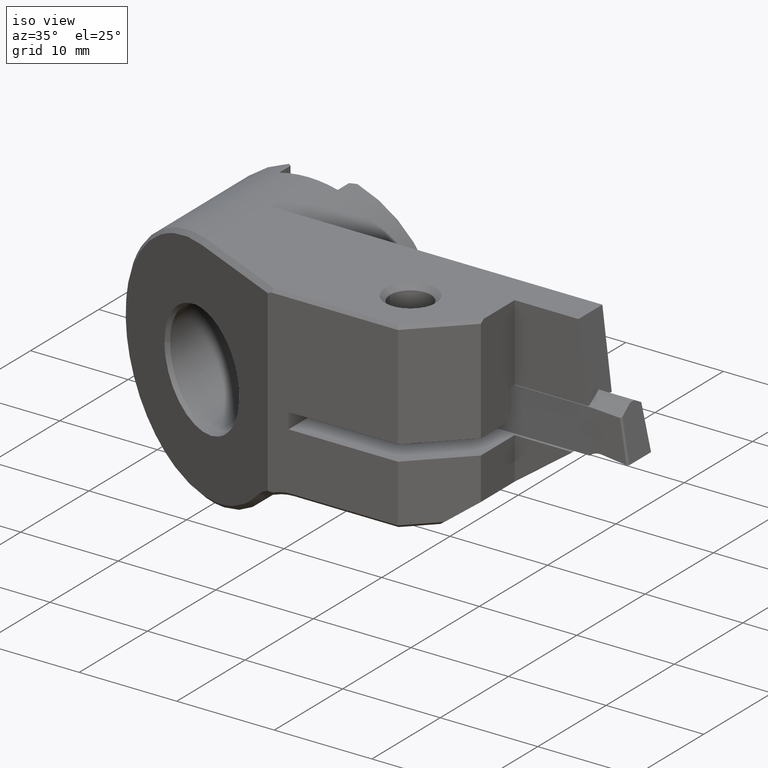
[diagram: clean part render]
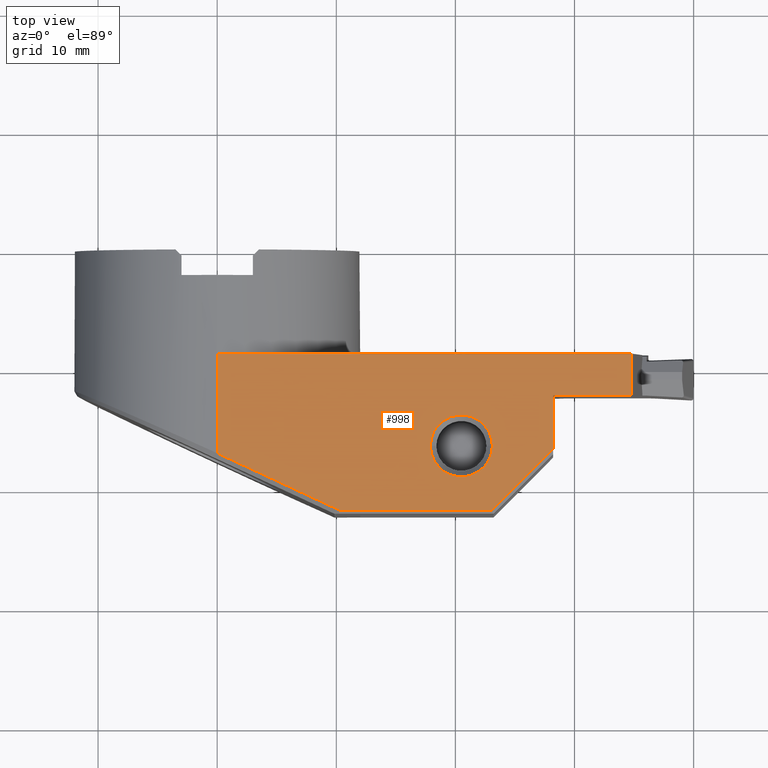
[diagram: tour spotlight — one face highlighted and labeled with its STEP entity id]
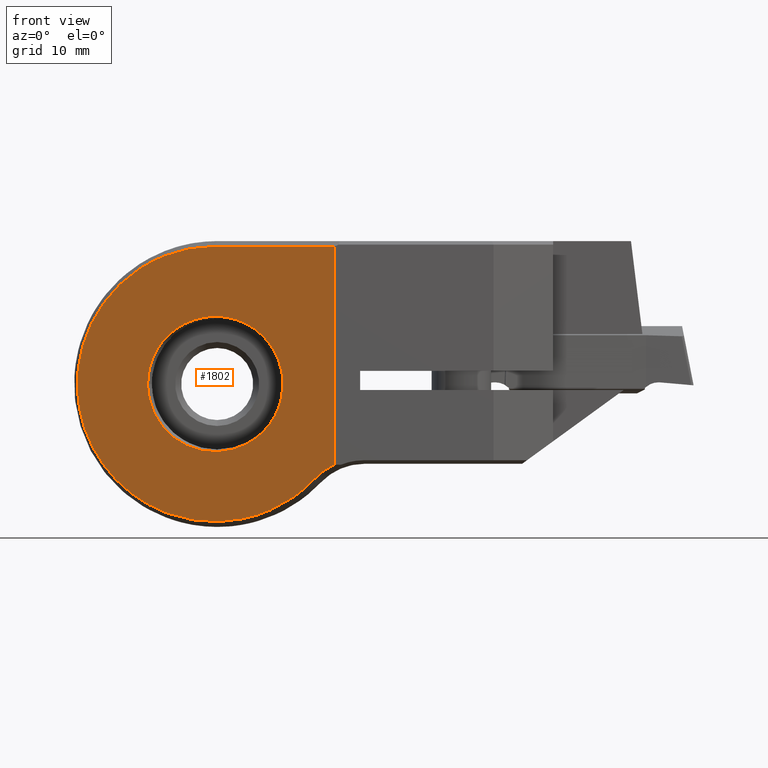
[diagram: tour spotlight — one face highlighted and labeled with its STEP entity id]
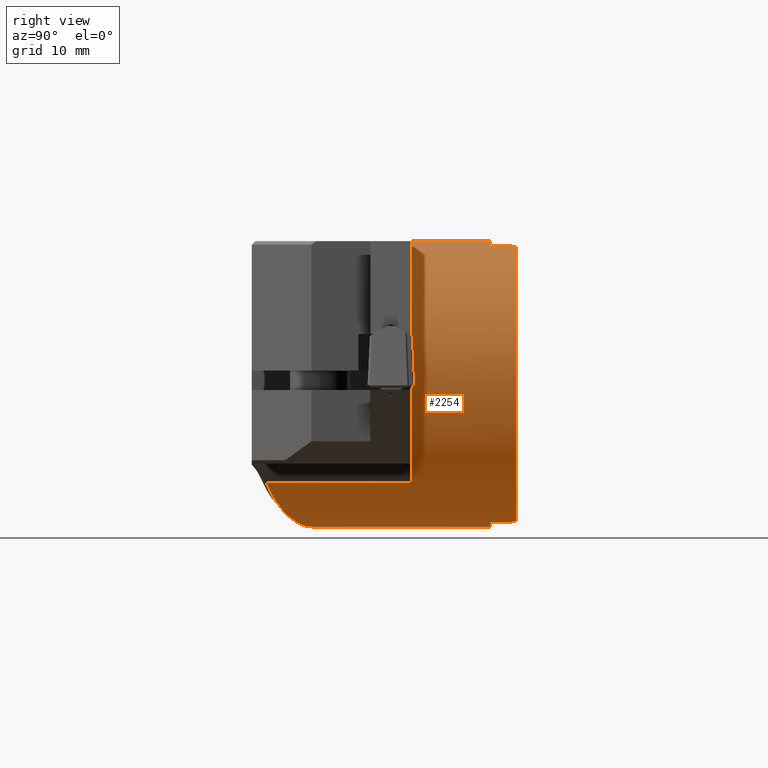
[diagram: tour spotlight — one face highlighted and labeled with its STEP entity id]
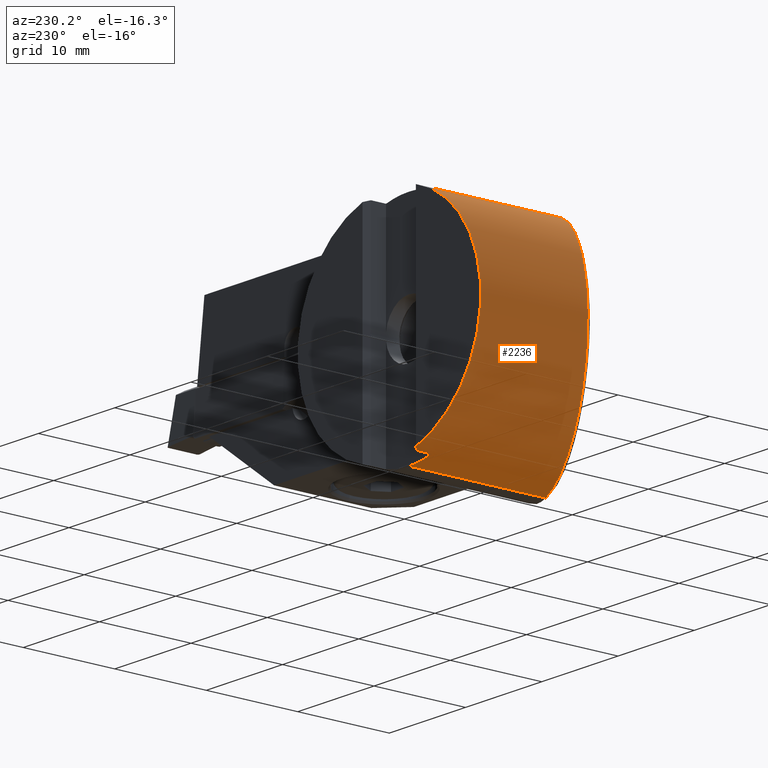
[diagram: tour spotlight — one face highlighted and labeled with its STEP entity id]
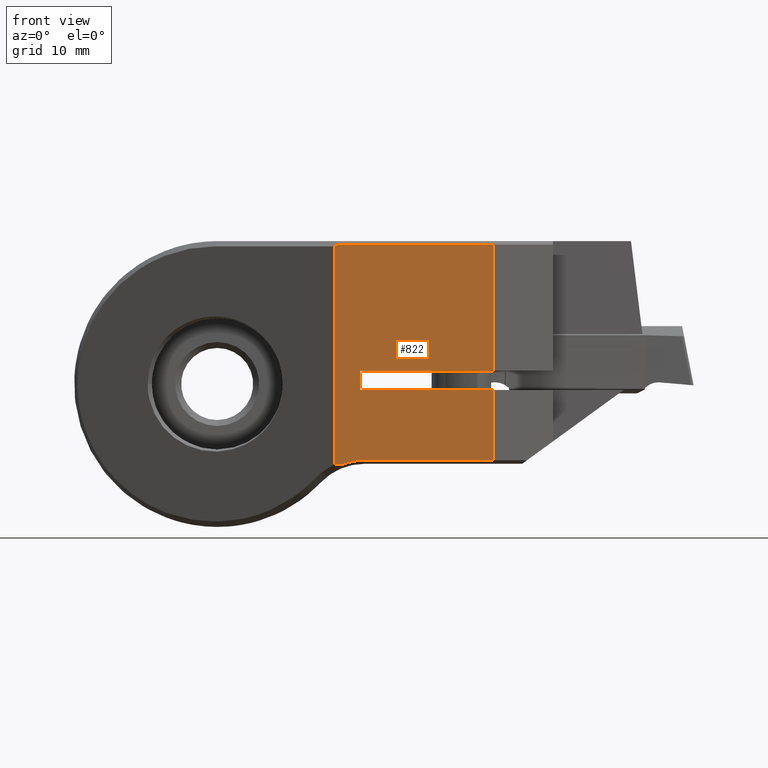
[diagram: tour spotlight — one face highlighted and labeled with its STEP entity id]
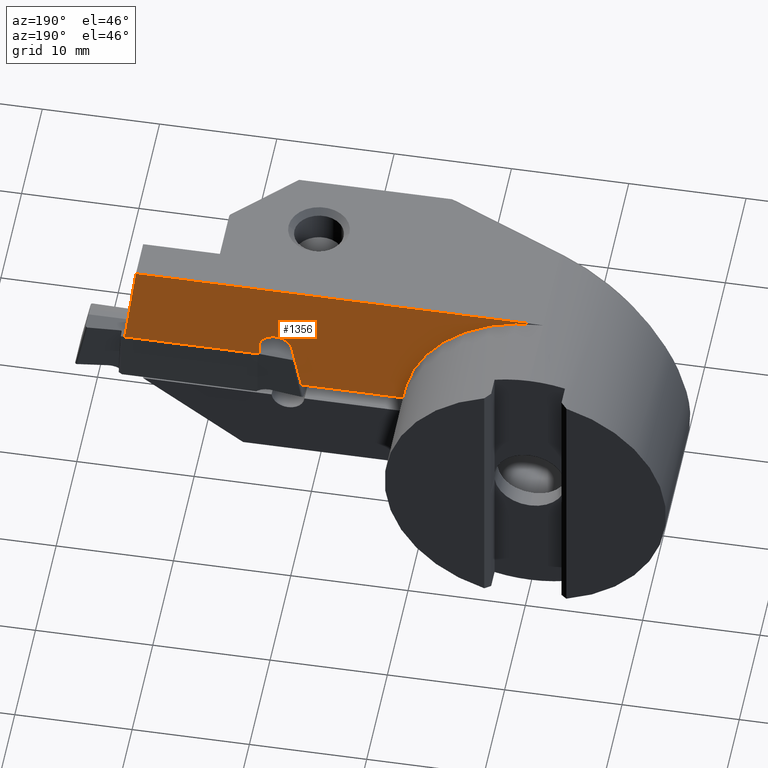
[diagram: tour spotlight — one face highlighted and labeled with its STEP entity id]
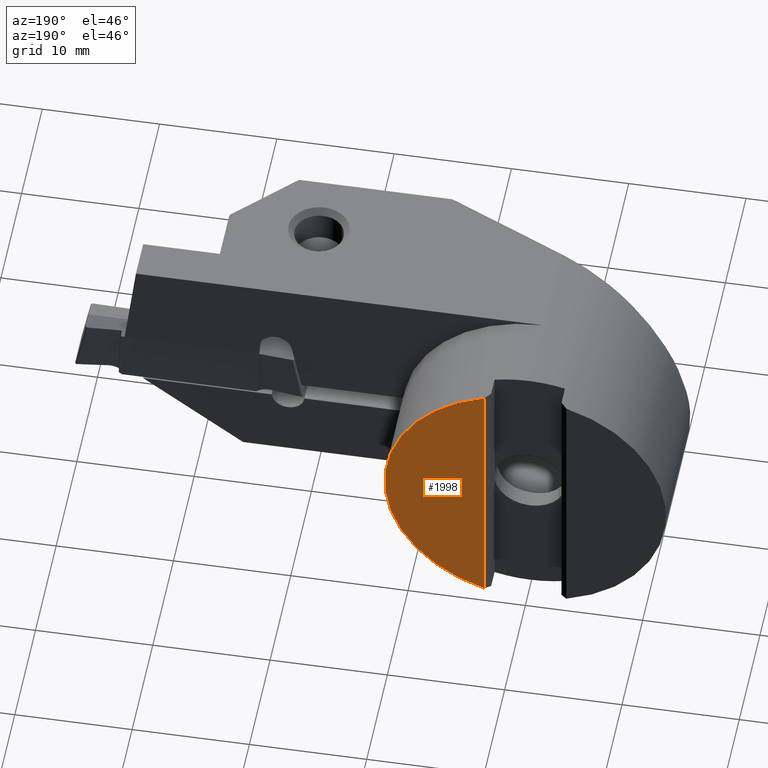
[diagram: tour spotlight — one face highlighted and labeled with its STEP entity id]
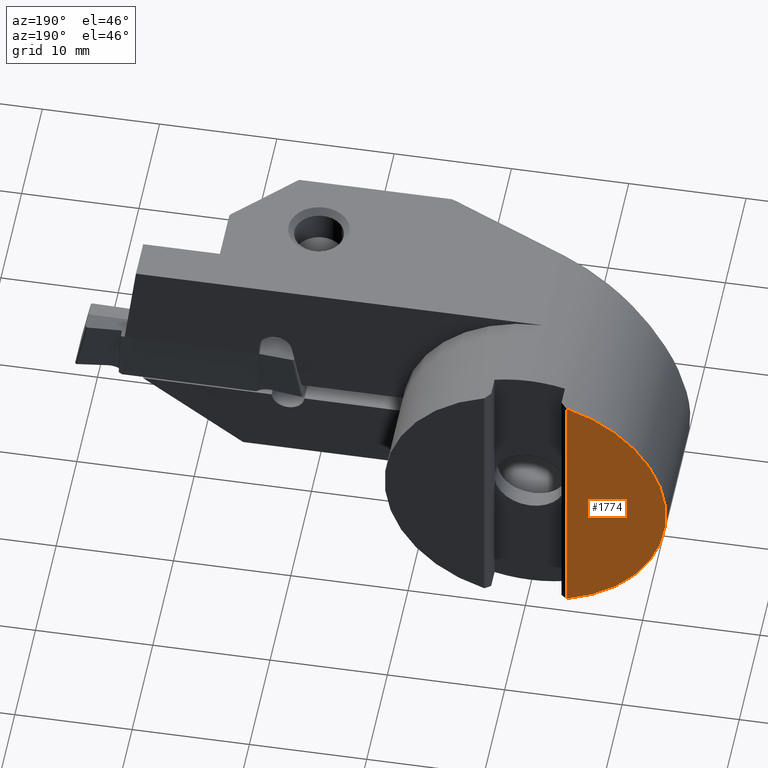
[diagram: tour spotlight — one face highlighted and labeled with its STEP entity id]
A machine part: a face-by-face anatomy tour. The part has 143 B-rep faces; the first image is the clean iso view, then the 8 largest visible faces are spotlighted one at a time (largest first), each with its STEP entity span.

Face 1 — top view, entity #998. In plain terms, the highlighted planar face has unit normal (0, 0, -1).
Definition (entity closure, byte-faithful):
#832=VERTEX_POINT('NONE',#2381);
#852=EDGE_CURVE('NONE',#2130,#2204,#2402,.F.);
#862=VERTEX_POINT('NONE',#2412);
#880=VERTEX_POINT('NONE',#2432);
#926=VERTEX_POINT('NONE',#2481);
#928=EDGE_CURVE('NONE',#880,#1282,#2483,.F.);
#998=ADVANCED_FACE('NONE',(#2559,#2560),#2561,.F.);
#1102=VERTEX_POINT('NONE',#2679);
#1282=VERTEX_POINT('NONE',#2873);
#1310=EDGE_CURVE('NONE',#1554,#926,#2902,.F.);
#1554=VERTEX_POINT('NONE',#3178);
#1572=EDGE_CURVE('NONE',#2130,#862,#3196,.T.);
#1678=EDGE_CURVE('NONE',#1554,#880,#3307,.T.);
#1836=EDGE_CURVE('NONE',#926,#862,#3480,.F.);
#1910=EDGE_CURVE('NONE',#832,#2322,#3562,.F.);
#1952=EDGE_CURVE('Kante7',#1282,#1102,#3610,.F.);
#1978=EDGE_CURVE('NONE',#2204,#1102,#3638,.F.);
#2130=VERTEX_POINT('NONE',#3809);
#2204=VERTEX_POINT('NONE',#3889);
#2222=EDGE_CURVE('NONE',#2322,#832,#3908,.T.);
#2322=VERTEX_POINT('NONE',#4021);
#2381=CARTESIAN_POINT('',(17.9,-16.5,12.0));
#2402=LINE('',#4183,#4184);
#2412=CARTESIAN_POINT('',(34.7416665021529,-8.75,12.0));
#2432=CARTESIAN_POINT('',(10.2690669821093,-21.903,12.0));
#2481=CARTESIAN_POINT('',(0.0,-8.75,12.0));
#2483=LINE('',#4321,#4322);
#2559=FACE_OUTER_BOUND('',#4485,.T.);
#2560=FACE_BOUND('',#4486,.T.);
#2561=PLANE('',#4487);
#2679=CARTESIAN_POINT('',(28.2,-16.775735931288,12.0));
#2873=CARTESIAN_POINT('',(23.0727359312881,-21.903,12.0));
#2902=LINE('',#5092,#5093);
#3178=CARTESIAN_POINT('',(0.0,-17.1144554241358,12.0));
#3196=LINE('',#5560,#5561);
#3307=LINE('',#5778,#5779);
#3480=LINE('',#6102,#6103);
#3562=CIRCLE('',#6209,2.60000000000002);
#3610=LINE('',#6352,#6353);
#3638=LINE('',#6401,#6402);
#3809=CARTESIAN_POINT('',(34.7416665021529,-12.25,12.0));
#3889=CARTESIAN_POINT('',(28.2,-12.25,12.0));
#3908=CIRCLE('',#6925,2.60000000000002);
#4021=CARTESIAN_POINT('',(23.1,-16.5,12.0));
#4183=CARTESIAN_POINT('',(14.1,-12.25,12.0));
#4184=VECTOR('',#7220,1.0);
#4321=CARTESIAN_POINT('',(17.85,-21.903,12.0));
#4322=VECTOR('',#7288,1.0);
#4485=EDGE_LOOP('',(#7356,#7357,#7358,#7359,#7360,#7361,#7362,#7363));
#4486=EDGE_LOOP('',(#7364,#7365));
#4487=AXIS2_PLACEMENT_3D('',#7366,#7367,#7368);
#5092=CARTESIAN_POINT('',(0.0,-11.17,12.0));
#5093=VECTOR('',#7744,1.0);
#5560=CARTESIAN_POINT('',(34.7416665021529,-11.1505000000001,12.0));
#5561=VECTOR('',#8059,1.0);
#5778=CARTESIAN_POINT('',(-6.55521673733335,-14.0577076586514,12.0));
#5779=VECTOR('',#8131,1.0);
#6102=CARTESIAN_POINT('',(-6.01853107621011E-033,-8.75,12.0));
#6103=VECTOR('',#8311,1.0);
#6209=AXIS2_PLACEMENT_3D('',#8397,#8398,#8399);
#6352=CARTESIAN_POINT('',(22.487867965644,-22.487867965644,12.0));
#6353=VECTOR('',#8460,1.0);
#6401=CARTESIAN_POINT('',(28.2,-11.625,12.0));
#6402=VECTOR('',#8494,1.0);
#6925=AXIS2_PLACEMENT_3D('',#8791,#8792,#8793);
#7220=DIRECTION('',(1.0,2.09002828430941E-016,0.0));
#7288=DIRECTION('',(-1.0,1.46390166749098E-016,-0.0));
#7356=ORIENTED_EDGE('',*,*,#852,.F.);
#7357=ORIENTED_EDGE('',*,*,#1572,.T.);
#7358=ORIENTED_EDGE('',*,*,#1836,.F.);
#7359=ORIENTED_EDGE('',*,*,#1310,.F.);
#7360=ORIENTED_EDGE('',*,*,#1678,.T.);
#7361=ORIENTED_EDGE('',*,*,#928,.T.);
#7362=ORIENTED_EDGE('',*,*,#1952,.T.);
#7363=ORIENTED_EDGE('',*,*,#1978,.F.);
#7364=ORIENTED_EDGE('',*,*,#1910,.T.);
#7365=ORIENTED_EDGE('',*,*,#2222,.T.);
#7366=CARTESIAN_POINT('',(-1.20370621524202E-032,0.0,12.0));
#7367=DIRECTION('',(0.0,0.0,-1.0));
#7368=DIRECTION('',(1.0,0.0,0.0));
#7744=DIRECTION('',(0.0,-1.0,0.0));
#8059=DIRECTION('',(0.0,1.0,0.0));
#8131=DIRECTION('',(0.906307787036649,-0.422618261740701,0.0));
#8311=DIRECTION('',(-1.0,0.0,0.0));
#8397=CARTESIAN_POINT('',(20.5,-16.5,12.0));
#8398=DIRECTION('',(0.0,0.0,1.0));
#8399=DIRECTION('',(-1.0,0.0,0.0));
#8460=DIRECTION('',(-0.707106781186548,-0.707106781186547,0.0));
#8494=DIRECTION('',(0.0,1.0,0.0));
#8791=CARTESIAN_POINT('',(20.5,-16.5,12.0));
#8792=DIRECTION('',(0.0,0.0,-1.0));
#8793=DIRECTION('',(-1.0,0.0,0.0));

Face 2 — front view, entity #1802. In plain terms, the highlighted planar face has unit normal (0.4226, 0.9063, -0).
Definition (entity closure, byte-faithful):
#856=VERTEX_POINT('NONE',#2406);
#930=EDGE_CURVE('Kante6',#1250,#1846,#2485,.T.);
#940=EDGE_CURVE('NONE',#1314,#1638,#2496,.F.);
#1250=VERTEX_POINT('NONE',#2840);
#1314=VERTEX_POINT('NONE',#2906);
#1638=VERTEX_POINT('NONE',#3265);
#1660=EDGE_CURVE('NONE',#1638,#856,#3288,.T.);
#1722=EDGE_CURVE('NONE',#856,#2284,#3354,.T.);
#1728=EDGE_CURVE('Kante6',#1846,#1250,#3361,.T.);
#1760=EDGE_CURVE('NONE',#2284,#1314,#3394,.T.);
#1802=ADVANCED_FACE('NONE',(#3441,#3442),#3443,.F.);
#1846=VERTEX_POINT('NONE',#3491);
#2284=VERTEX_POINT('NONE',#3980);
#2406=CARTESIAN_POINT('',(9.84728643384716,-22.2,11.5525744251075));
#2485=B_SPLINE_CURVE_WITH_KNOTS('',3,(#4325,#4326,#4327,#4328,#4329,#4330,#4331,#4332,#4333,#4334,#4335,#4336,#4337,#4338,#4339,#4340,#4341,#4342),.UNSPECIFIED.,.F.,.F.,(4,2,2,2,2,2,2,2,4),(0.0,0.0625000000000001,0.125,0.1875,0.25,0.3125,0.375,0.4375,0.5),.UNSPECIFIED.);
#2496=B_SPLINE_CURVE_WITH_KNOTS('',3,(#4372,#4373,#4374,#4375,#4376,#4377,#4378,#4379,#4380,#4381,#4382,#4383,#4384),.UNSPECIFIED.,.F.,.F.,(4,3,3,3,4),(-1.22535438666702,-1.20909306618072,-1.20330576480548,-0.759053796046614,-0.742063458954571),.UNSPECIFIED.);
#2840=CARTESIAN_POINT('',(-5.84099255856656,-14.8844353625653,0.0));
#2906=CARTESIAN_POINT('',(8.19215865515161,-21.4282012415692,-7.95088945727988));
#3265=CARTESIAN_POINT('',(9.84728643384715,-22.2,-6.76041176104631));
#3288=LINE('',#5737,#5738);
#3354=LINE('',#5848,#5849);
#3361=B_SPLINE_CURVE_WITH_KNOTS('',3,(#5859,#5860,#5861,#5862,#5863,#5864,#5865,#5866,#5867,#5868,#5869,#5870,#5871,#5872,#5873,#5874,#5875,#5876),.UNSPECIFIED.,.F.,.F.,(4,2,2,2,2,2,2,2,4),(0.5,0.5625,0.625,0.6875,0.75,0.8125,0.875,0.9375,1.0),.UNSPECIFIED.);
#3394=B_SPLINE_CURVE_WITH_KNOTS('',3,(#5953,#5954,#5955,#5956,#5957,#5958,#5959,#5960,#5961,#5962,#5963,#5964,#5965,#5966,#5967,#5968,#5969,#5970,#5971,#5972,#5973,#5974,#5975),.UNSPECIFIED.,.F.,.F.,(4,1,2,2,2,2,2,2,2,2,2,4),(0.0,0.0624999999999999,0.09375,0.125,0.25,0.375,0.5,0.625,0.75,0.8125,0.875,1.0),.UNSPECIFIED.);
#3441=FACE_OUTER_BOUND('',#6050,.T.);
#3442=FACE_BOUND('',#6051,.T.);
#3443=PLANE('',#6052);
#3491=CARTESIAN_POINT('',(5.52297767569965,-20.1835417098491,0.0));
#3980=CARTESIAN_POINT('',(-0.189090218719426,-17.5199607067802,11.5525744251075));
#4325=CARTESIAN_POINT('',(-5.84099255856656,-14.8844353625653,0.0));
#4326=CARTESIAN_POINT('',(-5.84075817972068,-14.884544655216,0.745087568224778));
#4327=CARTESIAN_POINT('',(-5.69496472944966,-14.9525292575862,1.46947116376939));
#4328=CARTESIAN_POINT('',(-5.11279924471768,-15.2239974814303,2.87552725813923));
#4329=CARTESIAN_POINT('',(-4.702950240012,-15.4151132110117,3.49143207143125));
#4330=CARTESIAN_POINT('',(-3.65060505670663,-15.9058298290096,4.54410834242046));
#4331=CARTESIAN_POINT('',(-3.03444841024459,-16.1931483918779,4.95358473667182));
#4332=CARTESIAN_POINT('',(-1.6285612622793,-16.8487243354758,5.5361643546286));
#4333=CARTESIAN_POINT('',(-0.903244383182274,-17.1869451507878,5.68186805950447));
#4334=CARTESIAN_POINT('',(0.585229500315354,-17.8810319216265,5.68210217476174));
#4335=CARTESIAN_POINT('',(1.31046027894953,-18.2192125876333,5.53595770532559));
#4336=CARTESIAN_POINT('',(2.71651962784052,-18.8748688298416,4.95379138597482));
#4337=CARTESIAN_POINT('',(3.33242421361982,-19.1620698548833,4.54394321389663));
#4338=CARTESIAN_POINT('',(4.38510131736499,-19.6529412499241,3.49159719995508));
#4339=CARTESIAN_POINT('',(4.79457729514537,-19.8438830341936,2.87544216483993));
#4340=CARTESIAN_POINT('',(5.37715691328813,-20.1155443716186,1.46955625706868));
#4341=CARTESIAN_POINT('',(5.52286061816335,-20.1834871250235,0.744238773035144));
#4342=CARTESIAN_POINT('',(5.52297767569965,-20.1835417098491,0.0));
#4372=CARTESIAN_POINT('',(10.2992142467117,-22.410737400072,-6.57321681012298));
#4373=CARTESIAN_POINT('',(10.271646144563,-22.3978821829193,-6.5838056651339));
#4374=CARTESIAN_POINT('',(10.2440780424142,-22.3850269657665,-6.59439452014482));
#4375=CARTESIAN_POINT('',(10.2165099402655,-22.3721717486137,-6.60498337515574));
#4376=CARTESIAN_POINT('',(10.2066986266263,-22.3675966579272,-6.60875188185349));
#4377=CARTESIAN_POINT('',(10.1968873129871,-22.3630215672407,-6.61252038855125));
#4378=CARTESIAN_POINT('',(10.1870845291898,-22.3584504540848,-6.61631122133081));
#4379=CARTESIAN_POINT('',(9.43392783620509,-22.0072477203553,-6.90557165610893));
#4380=CARTESIAN_POINT('',(8.7469734421148,-21.6869156255878,-7.36514444147254));
#4381=CARTESIAN_POINT('',(8.19215865515161,-21.4282012415692,-7.95088945727988));
#4382=CARTESIAN_POINT('',(8.17093986285117,-21.4183067562227,-7.97329117065069));
#4383=CARTESIAN_POINT('',(8.14972107055073,-21.4084122708762,-7.99569288402149));
#4384=CARTESIAN_POINT('',(8.1285022782503,-21.3985177855297,-8.01809459739229));
#5737=CARTESIAN_POINT('',(9.84728643384716,-22.2,14.75));
#5738=VECTOR('',#8115,1.0);
#5848=CARTESIAN_POINT('',(1.87316577697363,-18.4816064706479,11.5525744251075));
#5849=VECTOR('',#8169,1.0);
#5859=CARTESIAN_POINT('',(5.52297767569965,-20.1835417098491,0.0));
#5860=CARTESIAN_POINT('',(5.52309473323594,-20.1835962946747,-0.744238773035144));
#5861=CARTESIAN_POINT('',(5.37694984658675,-20.11544781483,-1.46947116376647));
#5862=CARTESIAN_POINT('',(4.79478436184676,-19.8439795909822,-2.87552725814214));
#5863=CARTESIAN_POINT('',(4.38493535714486,-19.6528638614025,-3.49143207143038));
#5864=CARTESIAN_POINT('',(3.33259017383994,-19.1621472434049,-4.54410834242133));
#5865=CARTESIAN_POINT('',(2.71643352738182,-18.8748286805384,-4.95358473667106));
#5866=CARTESIAN_POINT('',(1.31054637940823,-18.2192527369366,-5.53616435462935));
#5867=CARTESIAN_POINT('',(0.585229500316712,-17.8810319216271,-5.68186805950522));
#5868=CARTESIAN_POINT('',(-0.903244383183642,-17.1869451507872,-5.68210217476098));
#5869=CARTESIAN_POINT('',(-1.62847516181423,-16.848764484782,-5.53595770532632));
#5870=CARTESIAN_POINT('',(-3.03453451070965,-16.1931082425717,-4.95379138597411));
#5871=CARTESIAN_POINT('',(-3.65043909648735,-15.9059072175308,-4.54394321389751));
#5872=CARTESIAN_POINT('',(-4.70311620023126,-15.4150358224905,-3.49159719995423));
#5873=CARTESIAN_POINT('',(-5.1122407322807,-15.2242579200568,-2.87629027655649));
#5874=CARTESIAN_POINT('',(-5.69552324188661,-14.9522688189597,-1.46870814535214));
#5875=CARTESIAN_POINT('',(-5.84122676571425,-14.8843261499787,-0.7445417417007));
#5876=CARTESIAN_POINT('',(-5.84099255856656,-14.8844353625653,0.0));
#5953=CARTESIAN_POINT('',(-0.189090218719426,-17.5199607067802,11.5525744251075));
#5954=CARTESIAN_POINT('',(-1.15865268069903,-17.0678463056995,11.5534416155385));
#5955=CARTESIAN_POINT('',(-2.57074544813285,-16.4093766342198,11.3813292568176));
#5956=CARTESIAN_POINT('',(-3.91946182726329,-15.7804598579522,10.9490971815457));
#5957=CARTESIAN_POINT('',(-4.80452243817172,-15.3677493171542,10.6031380832421));
#5958=CARTESIAN_POINT('',(-5.24100875176121,-15.1642124064476,10.4007188600964));
#5959=CARTESIAN_POINT('',(-7.37825292451694,-14.1675990813444,9.24948662338826));
#5960=CARTESIAN_POINT('',(-8.76834710187147,-13.5193875208873,7.97661913822175));
#5961=CARTESIAN_POINT('',(-10.9051878083637,-12.5229623351927,4.73310938601232));
#5962=CARTESIAN_POINT('',(-11.5252580063536,-12.2338188532763,2.95320189548876));
#5963=CARTESIAN_POINT('',(-11.868064537307,-12.0739655426272,-0.915767915942976));
#5964=CARTESIAN_POINT('',(-11.5697448683749,-12.2130742888285,-2.77683296048296));
#5965=CARTESIAN_POINT('',(-10.0364933251883,-12.9280412252944,-6.3455278794115));
#5966=CARTESIAN_POINT('',(-8.89116324103931,-13.4621174146484,-7.84245029683228));
#5967=CARTESIAN_POINT('',(-5.84871731433301,-14.880833249794,-10.2569826532118));
#5968=CARTESIAN_POINT('',(-4.13042188142674,-15.682087569131,-11.0315912844495));
#5969=CARTESIAN_POINT('',(-1.26267003637321,-17.0193422161675,-11.5435716990839));
#5970=CARTESIAN_POINT('',(-0.314965215228681,-17.4612642319377,-11.5957333764048));
#5971=CARTESIAN_POINT('',(1.56401950598044,-18.3374491969937,-11.4630598092659));
#5972=CARTESIAN_POINT('',(2.49397926830137,-18.77109655594,-11.2786583817257));
#5973=CARTESIAN_POINT('',(5.26714200010612,-20.0642435750906,-10.3673558149151));
#5974=CARTESIAN_POINT('',(6.85840593663346,-20.8062621348391,-9.35935534752324));
#5975=CARTESIAN_POINT('',(8.19215865515161,-21.4282012415692,-7.95088945727988));
#6050=EDGE_LOOP('',(#8267,#8268,#8269,#8270));
#6051=EDGE_LOOP('',(#8271,#8272));
#6052=AXIS2_PLACEMENT_3D('',#8273,#8274,#8275);
#8115=DIRECTION('',(4.59569568417966E-032,-2.14300809208286E-032,1.0));
#8169=DIRECTION('',(-0.906307787036649,0.422618261740701,-7.85046229341892E-017));
#8267=ORIENTED_EDGE('',*,*,#1760,.T.);
#8268=ORIENTED_EDGE('',*,*,#940,.T.);
#8269=ORIENTED_EDGE('',*,*,#1660,.T.);
#8270=ORIENTED_EDGE('',*,*,#1722,.T.);
#8271=ORIENTED_EDGE('',*,*,#930,.T.);
#8272=ORIENTED_EDGE('',*,*,#1728,.T.);
#8273=CARTESIAN_POINT('',(10.49063851,-22.5,17.5));
#8274=DIRECTION('',(0.422618261740701,0.906307787036649,-0.0));
#8275=DIRECTION('',(0.0,0.0,1.0));

Face 3 — right view, entity #2254. In plain terms, the highlighted cylindrical surface (partial cylindrical patch) has radius 12 mm, axis along (-0, 1, -0).
Definition (entity closure, byte-faithful):
#806=EDGE_CURVE('NONE',#1348,#1602,#2352,.F.);
#922=VERTEX_POINT('NONE',#2477);
#926=VERTEX_POINT('NONE',#2481);
#1106=EDGE_CURVE('NONE',#1670,#1388,#2683,.F.);
#1160=EDGE_CURVE('NONE',#1548,#1518,#2742,.F.);
#1190=VERTEX_POINT('NONE',#2775);
#1264=EDGE_CURVE('NONE',#1518,#2260,#2855,.F.);
#1348=VERTEX_POINT('NONE',#2946);
#1380=VERTEX_POINT('NONE',#2982);
#1388=VERTEX_POINT('NONE',#2990);
#1518=VERTEX_POINT('NONE',#3138);
#1548=VERTEX_POINT('NONE',#3171);
#1602=VERTEX_POINT('NONE',#3228);
#1648=EDGE_CURVE('NONE',#926,#1388,#3275,.T.);
#1670=VERTEX_POINT('NONE',#3299);
#1696=EDGE_CURVE('NONE',#2036,#1348,#3326,.T.);
#1730=EDGE_CURVE('NONE',#1602,#1548,#3363,.F.);
#1754=EDGE_CURVE('NONE',#1190,#2036,#3388,.T.);
#1762=EDGE_CURVE('NONE',#1380,#2260,#3396,.T.);
#1808=VERTEX_POINT('NONE',#3449);
#1974=EDGE_CURVE('NONE',#1808,#922,#3634,.F.);
#2036=VERTEX_POINT('NONE',#3703);
#2102=EDGE_CURVE('NONE',#1670,#1380,#3780,.T.);
#2120=EDGE_CURVE('NONE',#1808,#1190,#3798,.T.);
#2246=EDGE_CURVE('NONE',#922,#926,#3935,.F.);
#2254=ADVANCED_FACE('Fl�che4',(#3946),#3947,.T.);
#2260=VERTEX_POINT('NONE',#3953);
#2352=CIRCLE('',#4046,12.0);
#2477=CARTESIAN_POINT('',(12.0,-8.75,0.0));
#2481=CARTESIAN_POINT('',(0.0,-8.75,12.0));
#2683=CIRCLE('',#4683,12.0);
#2742=ELLIPSE('',#4863,16.970562748477,12.0);
#2775=CARTESIAN_POINT('',(8.70585055638072,-21.0226959589248,-8.25882352941177));
#2855=CIRCLE('',#5023,12.0);
#2946=CARTESIAN_POINT('',(1.46957615897682E-015,-2.15,-12.0));
#2982=CARTESIAN_POINT('',(3.0,-0.5,11.6189500386223));
#2990=CARTESIAN_POINT('',(0.0,-2.15,12.0));
#3138=CARTESIAN_POINT('',(3.50000000000001,0.0,-11.478240283249));
#3171=CARTESIAN_POINT('',(3.0,-0.5,-11.6189500386223));
#3228=CARTESIAN_POINT('',(3.0,-2.15,-11.6189500386223));
#3275=LINE('',#5718,#5719);
#3299=CARTESIAN_POINT('',(3.0,-2.15,11.6189500386223));
#3326=B_SPLINE_CURVE_WITH_KNOTS('',3,(#5807,#5808,#5809,#5810),.UNSPECIFIED.,.F.,.F.,(4,4),(-0.0059448540818176,0.00902),.UNSPECIFIED.);
#3363=LINE('',#5879,#5880);
#3388=B_SPLINE_CURVE_WITH_KNOTS('',3,(#5917,#5918,#5919,#5920,#5921,#5922,#5923,#5924,#5925,#5926,#5927,#5928,#5929,#5930,#5931,#5932,#5933,#5934,#5935,#5936,#5937,#5938,#5939,#5940,#5941,#5942),.UNSPECIFIED.,.F.,.F.,(4,2,2,2,2,2,2,2,2,2,2,2,4),(-12.2684422680615,-12.1450642113202,-11.9696358276408,-11.8871228371023,-11.7908012352102,-11.5960268058757,-11.2848208732924,-10.5858842707867,-9.06837693916272,-8.06810803531795,-5.38891703570082,-2.6467959772772,-0.0),.UNSPECIFIED.);
#3396=ELLIPSE('',#5978,16.970562748477,12.0);
#3449=CARTESIAN_POINT('',(8.70585055638072,-8.75,-8.25882352941177));
#3634=CIRCLE('',#6394,12.0);
#3703=CARTESIAN_POINT('',(0.000127132625230869,-17.1148540818176,-11.9999999993266));
#3780=LINE('',#6662,#6663);
#3798=LINE('',#6698,#6699);
#3935=CIRCLE('',#6963,12.0);
#3946=FACE_OUTER_BOUND('',#6974,.T.);
#3947=CYLINDRICAL_SURFACE('',#6975,12.0);
#3953=CARTESIAN_POINT('',(3.50000000000001,0.0,11.478240283249));
#4046=AXIS2_PLACEMENT_3D('',#7156,#7157,#7158);
#4683=AXIS2_PLACEMENT_3D('',#7515,#7516,#7517);
#4863=AXIS2_PLACEMENT_3D('',#7581,#7582,#7583);
#5023=AXIS2_PLACEMENT_3D('',#7709,#7710,#7711);
#5718=CARTESIAN_POINT('',(0.0,-11.17,12.0));
#5719=VECTOR('',#8104,1000.0);
#5807=CARTESIAN_POINT('',(0.000127132625236983,-17.1148540818176,-11.9999999993266));
#5808=CARTESIAN_POINT('',(8.47550834969497E-005,-12.1265693878784,-11.9999999997755));
#5809=CARTESIAN_POINT('',(4.23775417438805E-005,-7.13828469393921,-12.0));
#5810=CARTESIAN_POINT('',(1.46952762458685E-015,-2.15,-12.0));
#5879=CARTESIAN_POINT('',(3.0,-11.17,-11.6189500386223));
#5880=VECTOR('',#8181,1.0);
#5917=CARTESIAN_POINT('',(9.02414568741277,-21.1752416038013,-7.90979105996799));
#5918=CARTESIAN_POINT('',(8.99522420958436,-21.1604063527997,-7.94278708065174));
#5919=CARTESIAN_POINT('',(8.96608498487648,-21.1457392451219,-7.97566643625527));
#5920=CARTESIAN_POINT('',(8.89498573531549,-21.1106249375413,-8.05500719681153));
#5921=CARTESIAN_POINT('',(8.85280626244477,-21.0903512602458,-8.10134317150246));
#5922=CARTESIAN_POINT('',(8.79014442520631,-21.061044869521,-8.16910231362982));
#5923=CARTESIAN_POINT('',(8.77000334923653,-21.051746013319,-8.19072131788261));
#5924=CARTESIAN_POINT('',(8.7261421946221,-21.0317568349965,-8.23745312720663));
#5925=CARTESIAN_POINT('',(8.70618485368654,-21.022846674365,-8.25852795334378));
#5926=CARTESIAN_POINT('',(8.64229185312028,-20.9942627408545,-8.32554080596899));
#5927=CARTESIAN_POINT('',(8.59922663335412,-20.9749820306862,-8.37001360331007));
#5928=CARTESIAN_POINT('',(8.48655232987617,-20.9245042744274,-8.48458590350995));
#5929=CARTESIAN_POINT('',(8.41646623241893,-20.8930743355085,-8.55411114808566));
#5930=CARTESIAN_POINT('',(8.18650227085089,-20.7898704372714,-8.7766859191353));
#5931=CARTESIAN_POINT('',(8.02355886019871,-20.7166268979833,-8.92586300542581));
#5932=CARTESIAN_POINT('',(7.49554878525037,-20.4791477178541,-9.38325655829938));
#5933=CARTESIAN_POINT('',(7.11740203903634,-20.3089008445304,-9.67299060520621));
#5934=CARTESIAN_POINT('',(6.46682791415422,-20.0164250578397,-10.1132353788373));
#5935=CARTESIAN_POINT('',(6.20238234524796,-19.8976368690828,-10.2774853559515));
#5936=CARTESIAN_POINT('',(5.21038298804307,-19.4524471678354,-10.841699162929));
#5937=CARTESIAN_POINT('',(4.45198512185068,-19.1131160695928,-11.1737860403407));
#5938=CARTESIAN_POINT('',(2.87076603987302,-18.4031235970118,-11.6817972401206));
#5939=CARTESIAN_POINT('',(2.04879754563794,-18.0332547987479,-11.8532256793247));
#5940=CARTESIAN_POINT('',(0.417120361225588,-17.301365217998,-12.0197735168981));
#5941=CARTESIAN_POINT('',(-0.390660457920264,-16.9401001495536,-12.0206767994961));
#5942=CARTESIAN_POINT('',(-1.19245521778436,-16.5807872027933,-11.9406051167258));
#5978=AXIS2_PLACEMENT_3D('',#8200,#8201,#8202);
#6394=AXIS2_PLACEMENT_3D('',#8490,#8491,#8492);
#6662=CARTESIAN_POINT('',(3.0,-11.17,11.6189500386223));
#6663=VECTOR('',#8689,1.0);
#6698=CARTESIAN_POINT('',(8.70585055638073,-11.17,-8.25882352941177));
#6699=VECTOR('',#8695,1.0);
#6963=AXIS2_PLACEMENT_3D('',#8835,#8836,#8837);
#6974=EDGE_LOOP('',(#8859,#8860,#8861,#8862,#8863,#8864,#8865,#8866,#8867,#8868,#8869,#8870,#8871));
#6975=AXIS2_PLACEMENT_3D('',#8872,#8873,#8874);
#7156=CARTESIAN_POINT('',(0.0,-2.15,0.0));
#7157=DIRECTION('',(0.0,1.0,0.0));
#7158=DIRECTION('',(0.0,0.0,1.0));
#7515=CARTESIAN_POINT('',(0.0,-2.15,0.0));
#7516=DIRECTION('',(0.0,1.0,0.0));
#7517=DIRECTION('',(0.0,0.0,1.0));
#7581=CARTESIAN_POINT('',(0.0,-3.49999999999997,0.0));
#7582=DIRECTION('',(-0.707106781186544,0.707106781186551,0.0));
#7583=DIRECTION('',(-0.707106781186552,-0.707106781186544,0.0));
#7709=CARTESIAN_POINT('',(0.0,0.0,0.0));
#7710=DIRECTION('',(-0.0,1.0,0.0));
#7711=DIRECTION('',(0.0,0.0,1.0));
#8104=DIRECTION('',(-0.0,1.0,0.0));
#8181=DIRECTION('',(0.0,-1.0,0.0));
#8200=CARTESIAN_POINT('',(0.0,-3.49999999999997,0.0));
#8201=DIRECTION('',(-0.707106781186544,0.707106781186551,0.0));
#8202=DIRECTION('',(-0.707106781186552,-0.707106781186544,0.0));
#8490=CARTESIAN_POINT('',(0.0,-8.75,0.0));
#8491=DIRECTION('',(0.0,1.0,0.0));
#8492=DIRECTION('',(0.0,0.0,1.0));
#8689=DIRECTION('',(-0.0,1.0,0.0));
#8695=DIRECTION('',(0.0,-1.0,0.0));
#8835=CARTESIAN_POINT('',(0.0,-8.75,0.0));
#8836=DIRECTION('',(0.0,1.0,0.0));
#8837=DIRECTION('',(0.0,0.0,1.0));
#8859=ORIENTED_EDGE('',*,*,#1754,.T.);
#8860=ORIENTED_EDGE('',*,*,#1696,.T.);
#8861=ORIENTED_EDGE('',*,*,#806,.T.);
#8862=ORIENTED_EDGE('',*,*,#1730,.T.);
#8863=ORIENTED_EDGE('',*,*,#1160,.T.);
#8864=ORIENTED_EDGE('',*,*,#1264,.T.);
#8865=ORIENTED_EDGE('',*,*,#1762,.F.);
#8866=ORIENTED_EDGE('',*,*,#2102,.F.);
#8867=ORIENTED_EDGE('',*,*,#1106,.T.);
#8868=ORIENTED_EDGE('',*,*,#1648,.F.);
#8869=ORIENTED_EDGE('',*,*,#2246,.F.);
#8870=ORIENTED_EDGE('',*,*,#1974,.F.);
#8871=ORIENTED_EDGE('',*,*,#2120,.T.);
#8872=CARTESIAN_POINT('',(0.0,-11.17,0.0));
#8873=DIRECTION('',(-0.0,1.0,-0.0));
#8874=DIRECTION('',(0.0,0.0,1.0));

Face 4 — auxiliary view, entity #2236. In plain terms, the highlighted cylindrical surface (partial cylindrical patch) has radius 12 mm, axis along (-0, 1, -0).
Definition (entity closure, byte-faithful):
#838=EDGE_CURVE('NONE',#1914,#1554,#2387,.T.);
#926=VERTEX_POINT('NONE',#2481);
#1218=VERTEX_POINT('NONE',#2806);
#1246=EDGE_CURVE('NONE',#1218,#1536,#2836,.F.);
#1272=VERTEX_POINT('NONE',#2863);
#1310=EDGE_CURVE('NONE',#1554,#926,#2902,.F.);
#1328=VERTEX_POINT('NONE',#2924);
#1348=VERTEX_POINT('NONE',#2946);
#1388=VERTEX_POINT('NONE',#2990);
#1480=EDGE_CURVE('',#1348,#1914,#3095,.T.);
#1488=EDGE_CURVE('NONE',#1970,#1328,#3105,.F.);
#1536=VERTEX_POINT('NONE',#3156);
#1554=VERTEX_POINT('NONE',#3178);
#1612=VERTEX_POINT('NONE',#3238);
#1648=EDGE_CURVE('NONE',#926,#1388,#3275,.T.);
#1814=EDGE_CURVE('NONE',#1272,#1218,#3455,.T.);
#1914=VERTEX_POINT('',#3567);
#1970=VERTEX_POINT('NONE',#3629);
#1994=EDGE_CURVE('NONE',#1612,#1348,#3654,.F.);
#2086=EDGE_CURVE('NONE',#1388,#1970,#3762,.F.);
#2116=EDGE_CURVE('NONE',#1328,#1272,#3794,.F.);
#2212=EDGE_CURVE('NONE',#1536,#1612,#3897,.F.);
#2236=ADVANCED_FACE('Fl�che4',(#3924),#3925,.T.);
#2387=B_SPLINE_CURVE_WITH_KNOTS('',3,(#4120,#4121,#4122,#4123,#4124,#4125,#4126,#4127,#4128,#4129,#4130,#4131,#4132,#4133,#4134,#4135,#4136,#4137,#4138,#4139,#4140,#4141,#4142,#4143,#4144,#4145,#4146,#4147,#4148,#4149,#4150,#4151,#4152,#4153,#4154,#4155,#4156,#4157,#4158,#4159),.UNSPECIFIED.,.F.,.F.,(4,2,2,2,2,2,2,2,2,2,2,2,2,2,2,2,2,2,2,4),(-51.1107395327613,-46.6343419368662,-42.4507812472294,-38.263184287832,-32.279166348962,-30.0434360503467,-24.5468840983179,-22.4867814567998,-18.7622350558625,-15.9694199907063,-10.3311747622469,-8.94288867909548,-2.8554343392998,-0.548687361915619,-0.490720992001181,-0.428060672749908,-0.325750287488978,-0.25136645756349,-0.139472428338021,-0.0),.UNSPECIFIED.);
#2481=CARTESIAN_POINT('',(0.0,-8.75,12.0));
#2806=CARTESIAN_POINT('',(-3.50000000000001,0.0,-11.478240283249));
#2836=ELLIPSE('',#4994,16.9705627484771,12.0);
#2863=CARTESIAN_POINT('',(-3.5,-4.44089209850063E-016,11.478240283249));
#2902=LINE('',#5092,#5093);
#2924=CARTESIAN_POINT('',(-3.0,-0.499999999999999,11.6189500386223));
#2946=CARTESIAN_POINT('',(1.46957615897682E-015,-2.15,-12.0));
#2990=CARTESIAN_POINT('',(0.0,-2.15,12.0));
#3095=LINE('',#5356,#5357);
#3105=LINE('',#5370,#5371);
#3156=CARTESIAN_POINT('',(-3.0,-0.499999999999999,-11.6189500386223));
#3178=CARTESIAN_POINT('',(0.0,-17.1144554241358,12.0));
#3238=CARTESIAN_POINT('',(-3.0,-2.15,-11.6189500386223));
#3275=LINE('',#5718,#5719);
#3455=CIRCLE('',#6069,12.0);
#3567=CARTESIAN_POINT('',(-2.78318275323868E-013,-17.1147971543016,-12.0));
#3629=CARTESIAN_POINT('',(-3.0,-2.15,11.6189500386223));
#3654=CIRCLE('',#6425,12.0);
#3762=CIRCLE('',#6607,12.0);
#3794=ELLIPSE('',#6691,16.9705627484771,12.0);
#3897=LINE('',#6901,#6902);
#3924=FACE_OUTER_BOUND('',#6945,.T.);
#3925=CYLINDRICAL_SURFACE('',#6946,12.0);
#4120=CARTESIAN_POINT('',(1.67317886542639,-17.8648540818176,-11.8827805030763));
#4121=CARTESIAN_POINT('',(0.60791521709089,-17.3866432334027,-12.0327770987418));
#4122=CARTESIAN_POINT('',(-0.472663882641415,-16.9037669192122,-12.03887021179));
#4123=CARTESIAN_POINT('',(-2.5370940932108,-15.9776749332199,-11.771764214386));
#4124=CARTESIAN_POINT('',(-3.5196883202289,-15.5336469013866,-11.5171405152281));
#4125=CARTESIAN_POINT('',(-5.40726804069047,-14.6847557078922,-10.7608632349182));
#4126=CARTESIAN_POINT('',(-6.30827346872618,-14.2818293955087,-10.2606549354934));
#4127=CARTESIAN_POINT('',(-8.33247774144306,-13.3745462164915,-8.76160309023047));
#4128=CARTESIAN_POINT('',(-9.37198452895437,-12.9043929519191,-7.65002585506647));
#4129=CARTESIAN_POINT('',(-10.4874064357695,-12.4055164180473,-5.86031718227874));
#4130=CARTESIAN_POINT('',(-10.7571062443139,-12.2852696908241,-5.3498718678732));
#4131=CARTESIAN_POINT('',(-11.5626708495358,-11.9239336929206,-3.51259323059222));
#4132=CARTESIAN_POINT('',(-11.9023215892027,-11.7685540900949,-2.10636342081118));
#4133=CARTESIAN_POINT('',(-12.0117356565118,-11.7212966543418,-0.116134718561009));
#4134=CARTESIAN_POINT('',(-12.0046766299932,-11.725212648334,0.427521612539464));
#4135=CARTESIAN_POINT('',(-11.8815272753057,-11.7807286759043,1.94773702907781));
#4136=CARTESIAN_POINT('',(-11.6830733050267,-11.8678076682886,2.90760589723396));
#4137=CARTESIAN_POINT('',(-11.1391184659755,-12.1118076393341,4.52252949042691));
#4138=CARTESIAN_POINT('',(-10.845107154128,-12.2446283085182,5.18681136631241));
#4139=CARTESIAN_POINT('',(-9.79046987814872,-12.7201698232361,7.08967327614993));
#4140=CARTESIAN_POINT('',(-8.82144983387422,-13.151606914507,8.292207594673));
#4141=CARTESIAN_POINT('',(-7.26949305856204,-13.8495061711559,9.55566899606728));
#4142=CARTESIAN_POINT('',(-6.95205037667618,-13.9924387505807,9.78890685485003));
#4143=CARTESIAN_POINT('',(-5.19183390659383,-14.7847584958933,10.9544556959212));
#4144=CARTESIAN_POINT('',(-3.58841057142052,-15.5016793502419,11.574004337243));
#4145=CARTESIAN_POINT('',(-1.29705423676789,-16.5321919076733,11.9467412586936));
#4146=CARTESIAN_POINT('',(-0.660697915006315,-16.818576673568,11.9987157233126));
#4147=CARTESIAN_POINT('',(-0.0077469115488665,-17.1109868333584,12.0000081738703));
#4148=CARTESIAN_POINT('',(0.00900119487446541,-17.1184753945949,12.0000095585553));
#4149=CARTESIAN_POINT('',(0.0456657085058819,-17.1349818027315,11.9999282239731));
#4150=CARTESIAN_POINT('',(0.0646925049475257,-17.1435974565768,11.9998406737465));
#4151=CARTESIAN_POINT('',(0.114735921870256,-17.1663891066513,11.9994916109906));
#4152=CARTESIAN_POINT('',(0.14572019097188,-17.1806334396734,11.9991550804972));
#4153=CARTESIAN_POINT('',(0.19914168476607,-17.2054226943172,11.9983685748938));
#4154=CARTESIAN_POINT('',(0.221602942630407,-17.2159159084314,11.9979746454178));
#4155=CARTESIAN_POINT('',(0.277781910500246,-17.2423376811023,11.9968319342571));
#4156=CARTESIAN_POINT('',(0.311463188188248,-17.2583383097533,11.9960044038384));
#4157=CARTESIAN_POINT('',(0.386980613931078,-17.2945731465951,11.9938318806906));
#4158=CARTESIAN_POINT('',(0.428778642029004,-17.3148778488456,11.9924096780405));
#4159=CARTESIAN_POINT('',(0.47047197118032,-17.3353811545105,11.9907737917256));
#4994=AXIS2_PLACEMENT_3D('',#7689,#7690,#7691);
#5092=CARTESIAN_POINT('',(0.0,-11.17,12.0));
#5093=VECTOR('',#7744,1.0);
#5356=CARTESIAN_POINT('',(-1.46952718392605E-015,-11.17,-12.0));
#5357=VECTOR('',#7965,1.0);
#5370=CARTESIAN_POINT('',(-3.0,-11.17,11.6189500386223));
#5371=VECTOR('',#7975,1.0);
#5718=CARTESIAN_POINT('',(0.0,-11.17,12.0));
#5719=VECTOR('',#8104,1000.0);
#6069=AXIS2_PLACEMENT_3D('',#8278,#8279,#8280);
#6425=AXIS2_PLACEMENT_3D('',#8503,#8504,#8505);
#6607=AXIS2_PLACEMENT_3D('',#8669,#8670,#8671);
#6691=AXIS2_PLACEMENT_3D('',#8691,#8692,#8693);
#6901=CARTESIAN_POINT('',(-3.0,-11.17,-11.6189500386223));
#6902=VECTOR('',#8783,1.0);
#6945=EDGE_LOOP('',(#8818,#8819,#8820,#8821,#8822,#8823,#8824,#8825,#8826,#8827,#8828));
#6946=AXIS2_PLACEMENT_3D('',#8829,#8830,#8831);
#7689=CARTESIAN_POINT('',(0.0,-3.49999999999997,0.0));
#7690=DIRECTION('',(0.707106781186544,0.707106781186551,0.0));
#7691=DIRECTION('',(-0.707106781186551,0.707106781186544,-0.0));
#7744=DIRECTION('',(0.0,-1.0,0.0));
#7965=DIRECTION('',(0.0,-1.0,0.0));
#7975=DIRECTION('',(0.0,-1.0,0.0));
#8104=DIRECTION('',(-0.0,1.0,0.0));
#8278=CARTESIAN_POINT('',(0.0,0.0,0.0));
#8279=DIRECTION('',(0.0,-1.0,0.0));
#8280=DIRECTION('',(0.0,0.0,1.0));
#8503=CARTESIAN_POINT('',(0.0,-2.15,0.0));
#8504=DIRECTION('',(0.0,1.0,0.0));
#8505=DIRECTION('',(0.0,0.0,1.0));
#8669=CARTESIAN_POINT('',(0.0,-2.15,0.0));
#8670=DIRECTION('',(0.0,1.0,0.0));
#8671=DIRECTION('',(0.0,0.0,1.0));
#8691=CARTESIAN_POINT('',(0.0,-3.49999999999997,0.0));
#8692=DIRECTION('',(0.707106781186544,0.707106781186551,0.0));
#8693=DIRECTION('',(-0.707106781186551,0.707106781186544,-0.0));
#8783=DIRECTION('',(-0.0,1.0,0.0));
#8818=ORIENTED_EDGE('',*,*,#1480,.T.);
#8819=ORIENTED_EDGE('',*,*,#838,.T.);
#8820=ORIENTED_EDGE('',*,*,#1310,.T.);
#8821=ORIENTED_EDGE('',*,*,#1648,.T.);
#8822=ORIENTED_EDGE('',*,*,#2086,.T.);
#8823=ORIENTED_EDGE('',*,*,#1488,.T.);
#8824=ORIENTED_EDGE('',*,*,#2116,.T.);
#8825=ORIENTED_EDGE('',*,*,#1814,.T.);
#8826=ORIENTED_EDGE('',*,*,#1246,.T.);
#8827=ORIENTED_EDGE('',*,*,#2212,.T.);
#8828=ORIENTED_EDGE('',*,*,#1994,.T.);
#8829=CARTESIAN_POINT('',(0.0,-11.17,0.0));
#8830=DIRECTION('',(-0.0,1.0,-0.0));
#8831=DIRECTION('',(0.0,0.0,1.0));

Face 5 — front view, entity #822. In plain terms, the highlighted planar face has unit normal (-0, -1, -0).
Definition (entity closure, byte-faithful):
#822=ADVANCED_FACE('NONE',(#2369),#2370,.T.);
#856=VERTEX_POINT('NONE',#2406);
#1254=EDGE_CURVE('NONE',#1426,#1558,#2844,.T.);
#1364=EDGE_CURVE('NONE',#1894,#1610,#2964,.F.);
#1372=VERTEX_POINT('NONE',#2972);
#1406=EDGE_CURVE('NONE',#2064,#1426,#3011,.T.);
#1426=VERTEX_POINT('NONE',#3035);
#1456=EDGE_CURVE('NONE',#2064,#1372,#3068,.T.);
#1534=EDGE_CURVE('NONE',#1980,#856,#3154,.F.);
#1558=VERTEX_POINT('NONE',#3182);
#1610=VERTEX_POINT('NONE',#3236);
#1638=VERTEX_POINT('NONE',#3265);
#1660=EDGE_CURVE('NONE',#1638,#856,#3288,.T.);
#1758=EDGE_CURVE('NONE',#2176,#2140,#3392,.T.);
#1794=VERTEX_POINT('NONE',#3433);
#1854=EDGE_CURVE('NONE',#1372,#2176,#3500,.F.);
#1862=EDGE_CURVE('NONE',#1610,#2140,#3508,.T.);
#1894=VERTEX_POINT('NONE',#3543);
#1934=EDGE_CURVE('NONE',#1794,#2206,#3590,.F.);
#1980=VERTEX_POINT('NONE',#3640);
#2040=EDGE_CURVE('NONE',#1638,#1794,#3708,.T.);
#2064=VERTEX_POINT('NONE',#3737);
#2106=EDGE_CURVE('NONE',#2206,#1894,#3784,.F.);
#2140=VERTEX_POINT('NONE',#3820);
#2176=VERTEX_POINT('NONE',#3858);
#2206=VERTEX_POINT('NONE',#3891);
#2242=EDGE_CURVE('NONE',#1558,#1980,#3931,.T.);
#2369=FACE_OUTER_BOUND('',#4083,.T.);
#2370=PLANE('',#4084);
#2406=CARTESIAN_POINT('',(9.84728643384716,-22.2,11.5525744251075));
#2844=LINE('',#5005,#5006);
#2964=LINE('',#5181,#5182);
#2972=CARTESIAN_POINT('',(12.0,-22.2,1.1));
#3011=LINE('',#5244,#5245);
#3035=CARTESIAN_POINT('',(23.2,-22.2,11.7));
#3068=LINE('',#5320,#5321);
#3154=LINE('',#5505,#5506);
#3182=CARTESIAN_POINT('',(23.1957573593129,-22.2,11.703));
#3236=CARTESIAN_POINT('',(23.2,-22.2,-6.39999999999998));
#3265=CARTESIAN_POINT('',(9.84728643384715,-22.2,-6.76041176104631));
#3288=LINE('',#5737,#5738);
#3392=LINE('',#5949,#5950);
#3433=CARTESIAN_POINT('',(10.3640200744778,-22.2,-6.78266416609349));
#3500=LINE('',#6131,#6132);
#3508=LINE('',#6143,#6144);
#3543=CARTESIAN_POINT('',(23.1957573594492,-22.2,-6.40299999990359));
#3590=CIRCLE('',#6253,5.29700000009641);
#3640=CARTESIAN_POINT('',(10.2032236673043,-22.2,11.703));
#3708=B_SPLINE_CURVE_WITH_KNOTS('',3,(#6516,#6517,#6518,#6519,#6520,#6521),.UNSPECIFIED.,.F.,.F.,(4,2,4),(-0.671540333228354,-0.312329664004845,-0.0),.UNSPECIFIED.);
#3737=CARTESIAN_POINT('',(23.2,-22.2,1.1));
#3784=LINE('',#6668,#6669);
#3820=CARTESIAN_POINT('',(23.2,-22.2,-0.5));
#3858=CARTESIAN_POINT('',(12.0,-22.2,-0.5));
#3891=CARTESIAN_POINT('',(12.333288288206,-22.2,-6.40299999990359));
#3931=LINE('',#6957,#6958);
#4083=EDGE_LOOP('',(#7172,#7173,#7174,#7175,#7176,#7177,#7178,#7179,#7180,#7181,#7182,#7183,#7184));
#4084=AXIS2_PLACEMENT_3D('',#7185,#7186,#7187);
#5005=CARTESIAN_POINT('',(26.987867965644,-22.2,9.02157287525381));
#5006=VECTOR('',#7693,1.0);
#5181=CARTESIAN_POINT('',(32.9788335683735,-22.2,0.514679528291584));
#5182=VECTOR('',#7826,1.0);
#5244=CARTESIAN_POINT('',(23.2,-22.2,-2.41088410359322E-031));
#5245=VECTOR('',#7865,1.0);
#5320=CARTESIAN_POINT('',(23.85,-22.2,1.1));
#5321=VECTOR('',#7928,1.0);
#5505=CARTESIAN_POINT('',(14.0167837913187,-22.2,13.3146801506546));
#5506=VECTOR('',#8015,1.0);
#5737=CARTESIAN_POINT('',(9.84728643384716,-22.2,14.75));
#5738=VECTOR('',#8115,1.0);
#5949=CARTESIAN_POINT('',(35.7,-22.2,-0.5));
#5950=VECTOR('',#8199,1.0);
#6131=CARTESIAN_POINT('',(12.0,-22.2,5.75));
#6132=VECTOR('',#8334,1.0);
#6143=CARTESIAN_POINT('',(23.2,-22.2,-2.41088410359322E-031));
#6144=VECTOR('',#8336,1.0);
#6253=AXIS2_PLACEMENT_3D('',#8433,#8434,#8435);
#6516=CARTESIAN_POINT('',(9.84728643384715,-22.2,-6.76041176104631));
#6517=CARTESIAN_POINT('',(9.95367229638116,-22.2,-6.76052131564796));
#6518=CARTESIAN_POINT('',(10.0600535814401,-22.2000000000003,-6.76340504156976));
#6519=CARTESIAN_POINT('',(10.2586598917511,-22.2000000000003,-6.77397956877867));
#6520=CARTESIAN_POINT('',(10.3725120646826,-22.2,-6.78309374090809));
#6521=CARTESIAN_POINT('',(10.4762357204943,-22.2,-6.79205320544355));
#6668=CARTESIAN_POINT('',(35.7,-22.2,-6.40299999990359));
#6669=VECTOR('',#8690,1.0);
#6957=CARTESIAN_POINT('',(35.7,-22.2,11.703));
#6958=VECTOR('',#8834,1.0);
#7172=ORIENTED_EDGE('',*,*,#1406,.T.);
#7173=ORIENTED_EDGE('',*,*,#1254,.T.);
#7174=ORIENTED_EDGE('',*,*,#2242,.T.);
#7175=ORIENTED_EDGE('',*,*,#1534,.T.);
#7176=ORIENTED_EDGE('',*,*,#1660,.F.);
#7177=ORIENTED_EDGE('',*,*,#2040,.T.);
#7178=ORIENTED_EDGE('',*,*,#1934,.T.);
#7179=ORIENTED_EDGE('',*,*,#2106,.T.);
#7180=ORIENTED_EDGE('',*,*,#1364,.T.);
#7181=ORIENTED_EDGE('',*,*,#1862,.T.);
#7182=ORIENTED_EDGE('',*,*,#1758,.F.);
#7183=ORIENTED_EDGE('',*,*,#1854,.F.);
#7184=ORIENTED_EDGE('',*,*,#1456,.F.);
#7185=CARTESIAN_POINT('',(35.7,-22.2,12.0));
#7186=DIRECTION('',(-3.13715311944675E-048,-1.0,-2.14300809208286E-032));
#7187=DIRECTION('',(1.0,0.0,-1.46390166749098E-016));
#7693=DIRECTION('',(-0.816496580927727,-1.23726629883958E-032,0.577350269189624));
#7826=DIRECTION('',(-0.816496580927725,1.23726629883959E-032,-0.577350269189627));
#7865=DIRECTION('',(-2.14300809208286E-032,-2.14300809208286E-032,1.0));
#7928=DIRECTION('',(-1.0,3.13715311944675E-048,-0.0));
#8015=DIRECTION('',(0.921118787038764,-8.3423366312E-033,0.38928162063503));
#8115=DIRECTION('',(4.59569568417966E-032,-2.14300809208286E-032,1.0));
#8199=DIRECTION('',(1.0,-3.13715311944675E-048,0.0));
#8334=DIRECTION('',(0.0,-2.14300809208286E-032,1.0));
#8336=DIRECTION('',(-2.14300809208286E-032,-2.14300809208286E-032,1.0));
#8433=CARTESIAN_POINT('',(12.333288288206,-22.2,-11.7));
#8434=DIRECTION('',(-3.13715311944675E-048,-1.0,-2.14300809208286E-032));
#8435=DIRECTION('',(6.72294452107739E-080,2.14300809208286E-032,-1.0));
#8690=DIRECTION('',(-1.0,2.859635728111E-048,1.29498993662699E-017));
#8834=DIRECTION('',(-1.0,6.27430623889349E-048,-1.46390166749097E-016));

Face 6 — auxiliary view, entity #1356. In plain terms, the highlighted planar face has unit normal (0, -1, 0).
Definition (entity closure, byte-faithful):
#862=VERTEX_POINT('NONE',#2412);
#922=VERTEX_POINT('NONE',#2477);
#926=VERTEX_POINT('NONE',#2481);
#968=VERTEX_POINT('NONE',#2526);
#1026=EDGE_CURVE('NONE',#1960,#2312,#2594,.T.);
#1122=EDGE_CURVE('NONE',#2220,#1326,#2701,.T.);
#1156=VERTEX_POINT('NONE',#2738);
#1178=EDGE_CURVE('NONE',#1326,#1960,#2762,.F.);
#1326=VERTEX_POINT('NONE',#2922);
#1356=ADVANCED_FACE('NONE',(#2955),#2956,.F.);
#1486=VERTEX_POINT('NONE',#3103);
#1742=EDGE_CURVE('NONE',#922,#1486,#3375,.T.);
#1756=EDGE_CURVE('NONE',#968,#862,#3390,.F.);
#1836=EDGE_CURVE('NONE',#926,#862,#3480,.F.);
#1920=EDGE_CURVE('NONE',#1486,#2220,#3573,.F.);
#1960=VERTEX_POINT('NONE',#3618);
#2084=EDGE_CURVE('NONE',#1156,#968,#3760,.T.);
#2192=EDGE_CURVE('NONE',#2312,#1156,#3876,.T.);
#2220=VERTEX_POINT('NONE',#3906);
#2246=EDGE_CURVE('NONE',#922,#926,#3935,.F.);
#2312=VERTEX_POINT('NONE',#4010);
#2412=CARTESIAN_POINT('',(34.7416665021529,-8.75,12.0));
#2477=CARTESIAN_POINT('',(12.0,-8.75,0.0));
#2481=CARTESIAN_POINT('',(0.0,-8.75,12.0));
#2526=CARTESIAN_POINT('',(35.7,-8.75,4.195));
#2594=CIRCLE('',#4533,1.4);
#2701=LINE('',#4716,#4717);
#2738=CARTESIAN_POINT('',(24.2403,-8.75,4.195));
#2762=CIRCLE('',#4889,1.4);
#2922=CARTESIAN_POINT('',(21.4660219431733,-8.75,5.36713259352715));
#2955=FACE_OUTER_BOUND('',#5167,.T.);
#2956=PLANE('',#5168);
#3103=CARTESIAN_POINT('',(12.0,-8.75,1.1));
#3375=LINE('',#5895,#5896);
#3390=LINE('',#5945,#5946);
#3480=LINE('',#6102,#6103);
#3573=LINE('',#6222,#6223);
#3618=CARTESIAN_POINT('',(22.8403,-8.75,6.5));
#3760=LINE('',#6603,#6604);
#3876=LINE('',#6836,#6837);
#3906=CARTESIAN_POINT('',(20.6365753905119,-8.75,1.1));
#3935=CIRCLE('',#6963,12.0);
#4010=CARTESIAN_POINT('',(24.2403,-8.75,5.1));
#4533=AXIS2_PLACEMENT_3D('',#7420,#7421,#7422);
#4716=CARTESIAN_POINT('',(20.5726128849335,-8.75,0.770941435055216));
#4717=VECTOR('',#7538,1.0);
#4889=AXIS2_PLACEMENT_3D('',#7605,#7606,#7607);
#5167=EDGE_LOOP('',(#7811,#7812,#7813,#7814,#7815,#7816,#7817,#7818,#7819,#7820));
#5168=AXIS2_PLACEMENT_3D('',#7821,#7822,#7823);
#5895=CARTESIAN_POINT('',(12.0,-8.75,-0.25));
#5896=VECTOR('',#8183,1.0);
#5945=CARTESIAN_POINT('',(35.2094381960999,-8.75,8.19030527529496));
#5946=VECTOR('',#8198,1.0);
#6102=CARTESIAN_POINT('',(-6.01853107621011E-033,-8.75,12.0));
#6103=VECTOR('',#8311,1.0);
#6222=CARTESIAN_POINT('',(6.0,-8.75,1.1));
#6223=VECTOR('',#8413,1.0);
#6603=CARTESIAN_POINT('',(19.5,-8.75,4.195));
#6604=VECTOR('',#8668,1.0);
#6836=CARTESIAN_POINT('',(24.2403,-8.75,2.09749999999995));
#6837=VECTOR('',#8768,1.0);
#6963=AXIS2_PLACEMENT_3D('',#8835,#8836,#8837);
#7420=CARTESIAN_POINT('',(22.8403,-8.75,5.1));
#7421=DIRECTION('',(0.0,1.0,0.0));
#7422=DIRECTION('',(0.0,0.0,1.0));
#7538=DIRECTION('',(0.190808995376536,0.0,0.981627183447666));
#7605=CARTESIAN_POINT('',(22.8403,-8.75,5.1));
#7606=DIRECTION('',(0.0,-1.0,0.0));
#7607=DIRECTION('',(0.0,0.0,1.0));
#7811=ORIENTED_EDGE('',*,*,#1836,.T.);
#7812=ORIENTED_EDGE('',*,*,#1756,.F.);
#7813=ORIENTED_EDGE('',*,*,#2084,.F.);
#7814=ORIENTED_EDGE('',*,*,#2192,.F.);
#7815=ORIENTED_EDGE('',*,*,#1026,.F.);
#7816=ORIENTED_EDGE('',*,*,#1178,.F.);
#7817=ORIENTED_EDGE('',*,*,#1122,.F.);
#7818=ORIENTED_EDGE('',*,*,#1920,.F.);
#7819=ORIENTED_EDGE('',*,*,#1742,.F.);
#7820=ORIENTED_EDGE('',*,*,#2246,.T.);
#7821=CARTESIAN_POINT('',(0.0,-8.75,0.0));
#7822=DIRECTION('',(0.0,-1.0,0.0));
#7823=DIRECTION('',(1.0,0.0,0.0));
#8183=DIRECTION('',(0.0,0.0,1.0));
#8198=DIRECTION('',(0.121869343405141,0.0,-0.992546151641323));
#8311=DIRECTION('',(-1.0,0.0,0.0));
#8413=DIRECTION('',(-1.0,0.0,0.0));
#8668=DIRECTION('',(1.0,0.0,1.29881759587452E-047));
#8768=DIRECTION('',(-3.83364304083272E-015,0.0,-1.0));
#8835=CARTESIAN_POINT('',(0.0,-8.75,0.0));
#8836=DIRECTION('',(0.0,1.0,0.0));
#8837=DIRECTION('',(0.0,0.0,1.0));

Face 7 — auxiliary view, entity #1998. In plain terms, the highlighted planar face has unit normal (0, -1, 0).
Definition (entity closure, byte-faithful):
#840=EDGE_CURVE('NONE',#2260,#1518,#2389,.F.);
#1264=EDGE_CURVE('NONE',#1518,#2260,#2855,.F.);
#1518=VERTEX_POINT('NONE',#3138);
#1998=ADVANCED_FACE('NONE',(#3658),#3659,.F.);
#2260=VERTEX_POINT('NONE',#3953);
#2389=LINE('',#4162,#4163);
#2855=CIRCLE('',#5023,12.0);
#3138=CARTESIAN_POINT('',(3.50000000000001,0.0,-11.478240283249));
#3658=FACE_OUTER_BOUND('',#6431,.T.);
#3659=PLANE('',#6432);
#3953=CARTESIAN_POINT('',(3.50000000000001,0.0,11.478240283249));
#4162=CARTESIAN_POINT('',(3.50000000000001,0.0,7.5));
#4163=VECTOR('',#7208,1.0);
#5023=AXIS2_PLACEMENT_3D('',#7709,#7710,#7711);
#6431=EDGE_LOOP('',(#8508,#8509));
#6432=AXIS2_PLACEMENT_3D('',#8510,#8511,#8512);
#7208=DIRECTION('',(0.0,0.0,1.0));
#7709=CARTESIAN_POINT('',(0.0,0.0,0.0));
#7710=DIRECTION('',(-0.0,1.0,0.0));
#7711=DIRECTION('',(0.0,0.0,1.0));
#8508=ORIENTED_EDGE('',*,*,#840,.F.);
#8509=ORIENTED_EDGE('',*,*,#1264,.F.);
#8510=CARTESIAN_POINT('',(0.0,0.0,0.0));
#8511=DIRECTION('',(0.0,-1.0,0.0));
#8512=DIRECTION('',(1.0,0.0,0.0));

Face 8 — auxiliary view, entity #1774. In plain terms, the highlighted planar face has unit normal (0, -1, 0).
Definition (entity closure, byte-faithful):
#1018=EDGE_CURVE('NONE',#1272,#1218,#2585,.T.);
#1218=VERTEX_POINT('NONE',#2806);
#1272=VERTEX_POINT('NONE',#2863);
#1774=ADVANCED_FACE('NONE',(#3410),#3411,.F.);
#1814=EDGE_CURVE('NONE',#1272,#1218,#3455,.T.);
#2585=LINE('',#4518,#4519);
#2806=CARTESIAN_POINT('',(-3.50000000000001,0.0,-11.478240283249));
#2863=CARTESIAN_POINT('',(-3.5,-4.44089209850063E-016,11.478240283249));
#3410=FACE_OUTER_BOUND('',#5993,.T.);
#3411=PLANE('',#5994);
#3455=CIRCLE('',#6069,12.0);
#4518=CARTESIAN_POINT('',(-3.5,0.0,7.5));
#4519=VECTOR('',#7411,1.0);
#5993=EDGE_LOOP('',(#8235,#8236));
#5994=AXIS2_PLACEMENT_3D('',#8237,#8238,#8239);
#6069=AXIS2_PLACEMENT_3D('',#8278,#8279,#8280);
#7411=DIRECTION('',(0.0,0.0,-1.0));
#8235=ORIENTED_EDGE('',*,*,#1814,.F.);
#8236=ORIENTED_EDGE('',*,*,#1018,.T.);
#8237=CARTESIAN_POINT('',(0.0,0.0,0.0));
#8238=DIRECTION('',(0.0,-1.0,0.0));
#8239=DIRECTION('',(1.0,0.0,0.0));
#8278=CARTESIAN_POINT('',(0.0,0.0,0.0));
#8279=DIRECTION('',(0.0,-1.0,0.0));
#8280=DIRECTION('',(0.0,0.0,1.0));